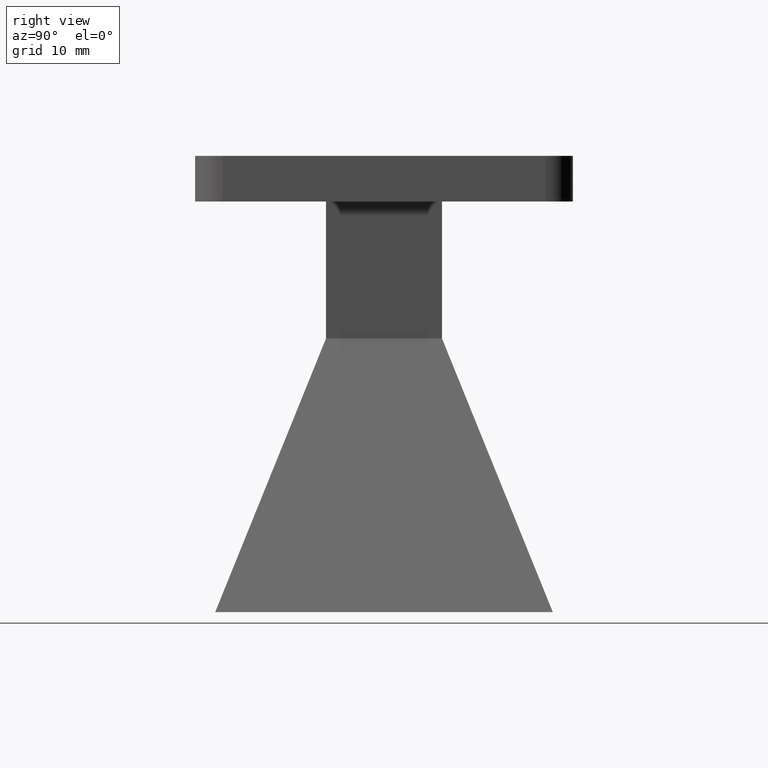
[diagram: clean part render]
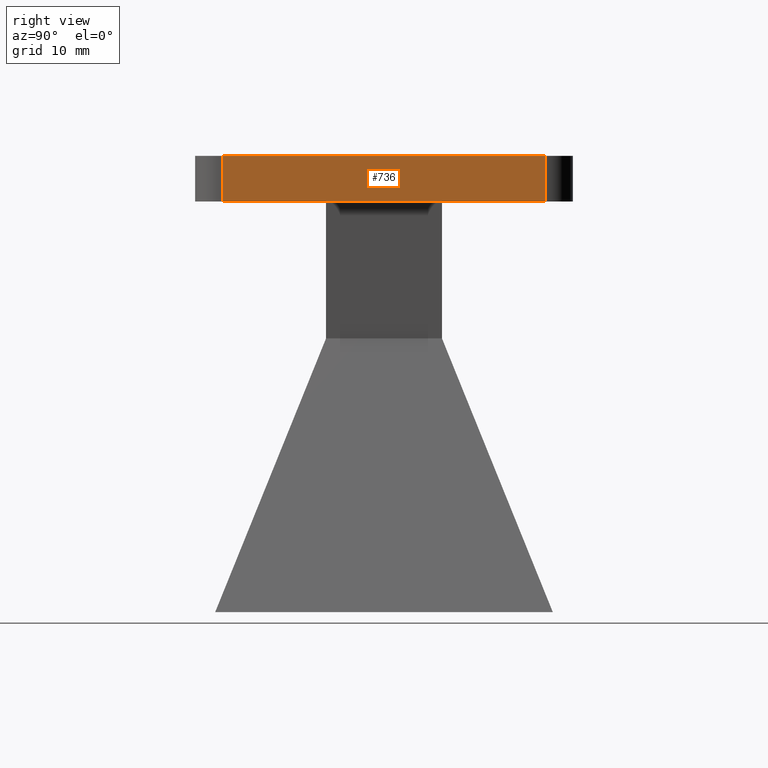
[diagram: same view with one face highlighted and labeled with its STEP entity id]
A machine part, right view. The second image highlights one B-rep face of the part: STEP entity #736.
In plain terms, the highlighted planar face has unit normal (1, 0, 0).
Its self-contained STEP definition (entity closure, byte-faithful):
#57 = VECTOR ( 'NONE', #318, 39.37007874015748100 ) ;
#66 = CARTESIAN_POINT ( 'NONE',  ( 0.8150000000000000600, 0.6968897637795274900, 0.0000000000000000000 ) ) ;
#69 = DIRECTION ( 'NONE',  ( 0.0000000000000000000, 1.000000000000000000, 0.0000000000000000000 ) ) ;
#101 = EDGE_CURVE ( 'NONE', #463, #367, #554, .T. ) ;
#102 = DIRECTION ( 'NONE',  ( 1.000000000000000000, 0.0000000000000000000, 0.0000000000000000000 ) ) ;
#119 = EDGE_CURVE ( 'NONE', #463, #407, #170, .T. ) ;
#128 = DIRECTION ( 'NONE',  ( 0.0000000000000000000, 1.000000000000000000, 0.0000000000000000000 ) ) ;
#170 = LINE ( 'NONE', #747, #57 ) ;
#281 = ORIENTED_EDGE ( 'NONE', *, *, #101, .T. ) ;
#296 = CARTESIAN_POINT ( 'NONE',  ( 0.8150000000000000600, -0.6968897637795274900, -0.1968503937007874100 ) ) ;
#301 = FACE_OUTER_BOUND ( 'NONE', #491, .T. ) ;
#318 = DIRECTION ( 'NONE',  ( 0.0000000000000000000, 0.0000000000000000000, 1.000000000000000000 ) ) ;
#367 = VERTEX_POINT ( 'NONE', #414 ) ;
#373 = VECTOR ( 'NONE', #69, 39.37007874015748100 ) ;
#407 = VERTEX_POINT ( 'NONE', #576 ) ;
#414 = CARTESIAN_POINT ( 'NONE',  ( 0.8150000000000000600, 0.6968897637795274900, -0.1968503937007874100 ) ) ;
#462 = CARTESIAN_POINT ( 'NONE',  ( 0.8150000000000000600, -0.6968897637795274900, -0.1968503937007874100 ) ) ;
#463 = VERTEX_POINT ( 'NONE', #1060 ) ;
#491 = EDGE_LOOP ( 'NONE', ( #746, #650, #281, #926 ) ) ;
#516 = CARTESIAN_POINT ( 'NONE',  ( 0.8150000000000000600, -0.6968897637795274900, 0.0000000000000000000 ) ) ;
#554 = LINE ( 'NONE', #296, #797 ) ;
#576 = CARTESIAN_POINT ( 'NONE',  ( 0.8150000000000000600, -0.6968897637795274900, 0.0000000000000000000 ) ) ;
#591 = VERTEX_POINT ( 'NONE', #66 ) ;
#650 = ORIENTED_EDGE ( 'NONE', *, *, #119, .F. ) ;
#661 = CARTESIAN_POINT ( 'NONE',  ( 0.8150000000000000600, 0.6968897637795274900, -0.1968503937007874100 ) ) ;
#662 = VECTOR ( 'NONE', #831, 39.37007874015748100 ) ;
#736 = ADVANCED_FACE ( 'NONE', ( #301 ), #999, .T. ) ;
#737 = LINE ( 'NONE', #661, #662 ) ;
#746 = ORIENTED_EDGE ( 'NONE', *, *, #1110, .F. ) ;
#747 = CARTESIAN_POINT ( 'NONE',  ( 0.8150000000000000600, -0.6968897637795274900, -0.1968503937007874100 ) ) ;
#797 = VECTOR ( 'NONE', #128, 39.37007874015748100 ) ;
#815 = DIRECTION ( 'NONE',  ( 0.0000000000000000000, 0.0000000000000000000, -1.000000000000000000 ) ) ;
#831 = DIRECTION ( 'NONE',  ( 0.0000000000000000000, 0.0000000000000000000, 1.000000000000000000 ) ) ;
#915 = LINE ( 'NONE', #516, #373 ) ;
#926 = ORIENTED_EDGE ( 'NONE', *, *, #927, .T. ) ;
#927 = EDGE_CURVE ( 'NONE', #367, #591, #737, .T. ) ;
#931 = AXIS2_PLACEMENT_3D ( 'NONE', #462, #102, #815 ) ;
#999 = PLANE ( 'NONE',  #931 ) ;
#1060 = CARTESIAN_POINT ( 'NONE',  ( 0.8150000000000000600, -0.6968897637795274900, -0.1968503937007874100 ) ) ;
#1110 = EDGE_CURVE ( 'NONE', #407, #591, #915, .T. ) ;